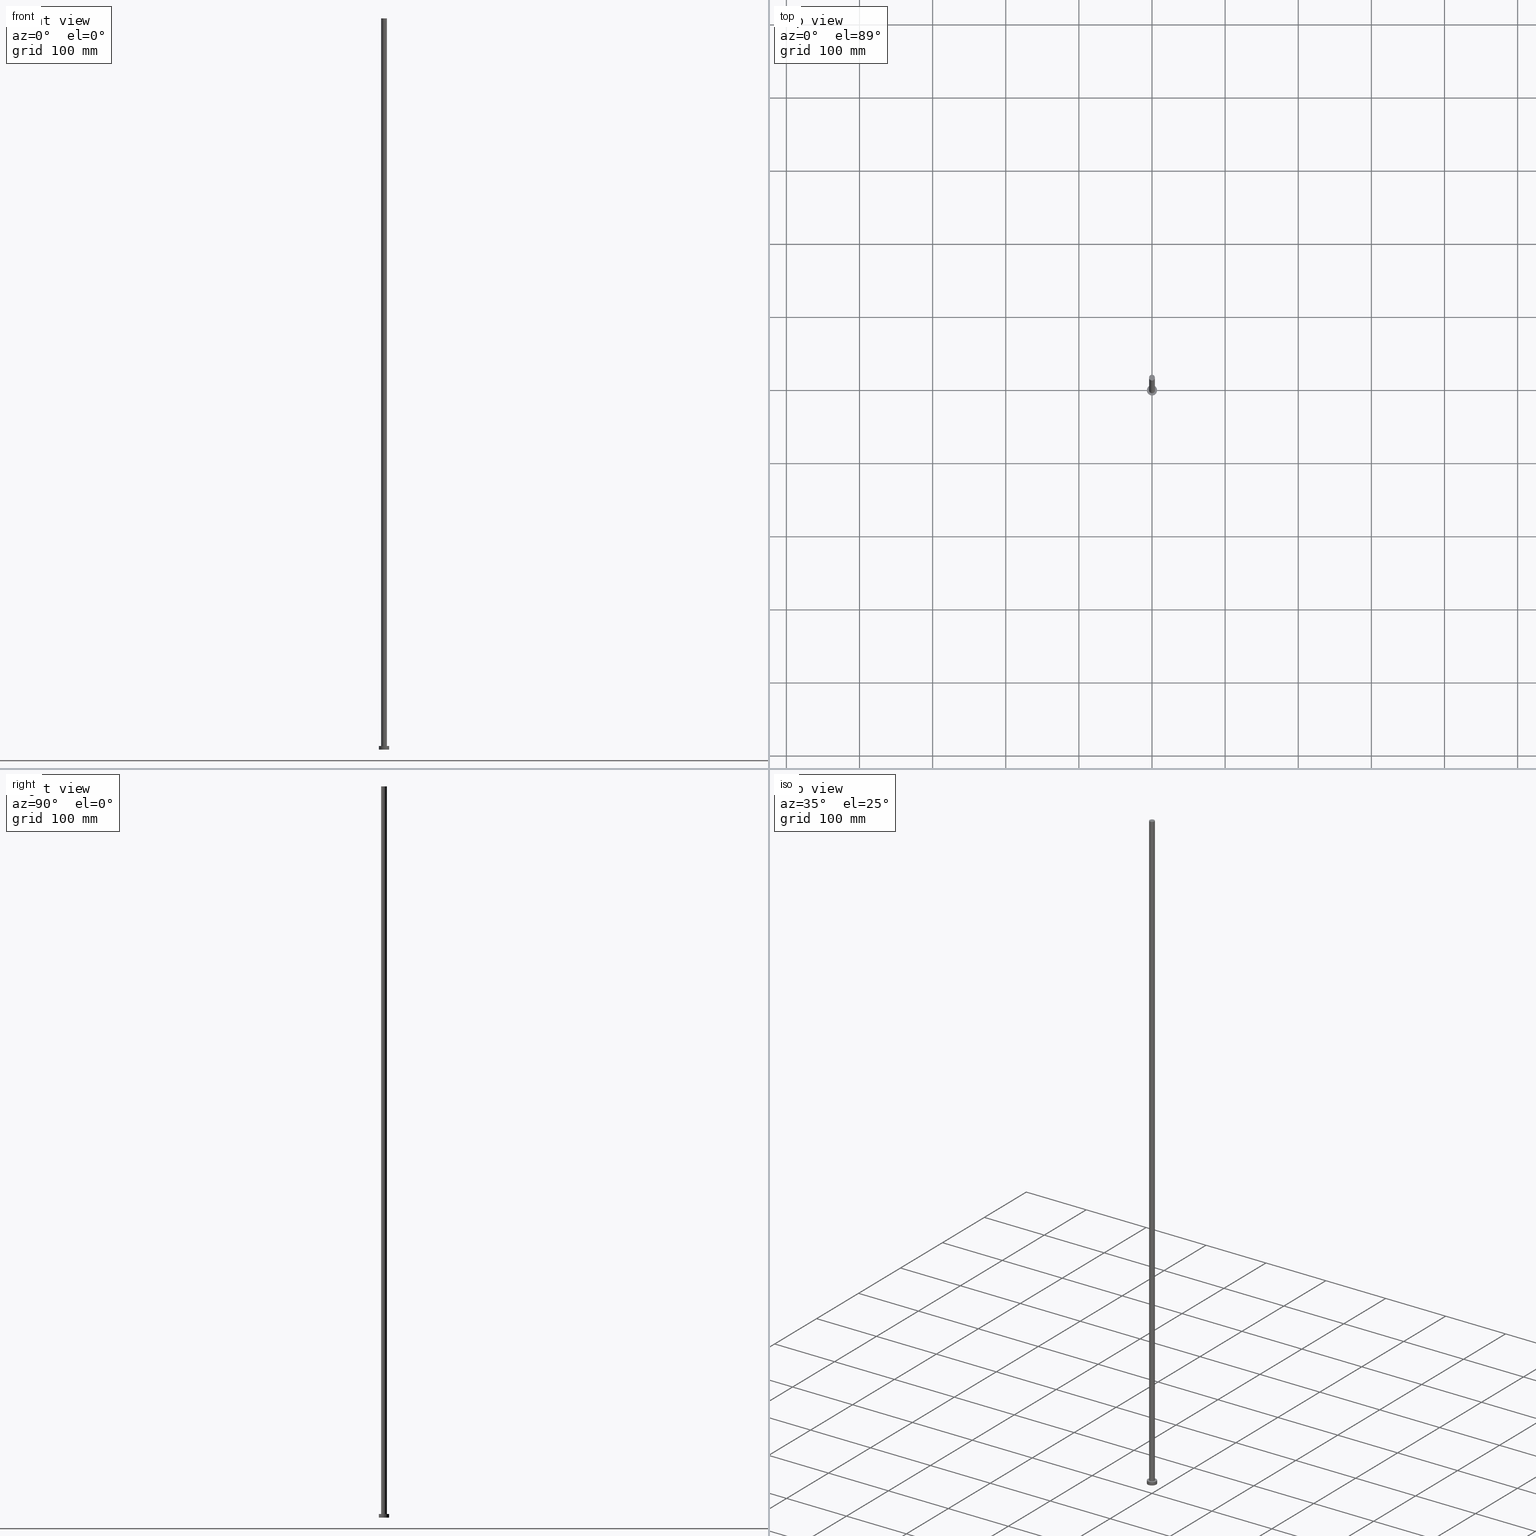
[diagram: canonical four-view strip — front | top / right | iso, engineering-drawing reading convention]
A machine part, canonical four-view strip (front | top / right | iso — engineering-drawing reading convention). The complete STEP part file that produces these views, byte-faithful:
ISO-10303-21;
HEADER;
FILE_DESCRIPTION (( 'STEP AP203' ),
    '1' );
FILE_NAME ('4111.STEP',
    '2023-02-13T10:53:35',
    ( '' ),
    ( '' ),
    'SwSTEP 2.0',
    'SolidWorks 2019',
    '' );
FILE_SCHEMA (( 'CONFIG_CONTROL_DESIGN' ));
ENDSEC;

DATA;
#1 = ORIENTED_EDGE ( 'NONE', *, *, #172, .T. ) ;
#2 = ORIENTED_EDGE ( 'NONE', *, *, #203, .F. ) ;
#3 = CC_DESIGN_PERSON_AND_ORGANIZATION_ASSIGNMENT ( #60, #107, ( #139 ) ) ;
#4 = COORDINATED_UNIVERSAL_TIME_OFFSET ( 1, 0, .AHEAD. ) ;
#5 = CARTESIAN_POINT ( 'NONE',  ( 4.000000000000000000, 4.898587196589411843E-16, 5.000000000000000000 ) ) ;
#6 = CARTESIAN_POINT ( 'NONE',  ( 0.000000000000000000, 0.000000000000000000, 5.000000000000000000 ) ) ;
#7 = CARTESIAN_POINT ( 'NONE',  ( -7.000000000000000000, 0.000000000000000000, 5.000000000000000000 ) ) ;
#8 = AXIS2_PLACEMENT_3D ( 'NONE', #105, #255, #166 ) ;
#9 = EDGE_LOOP ( 'NONE', ( #69, #252 ) ) ;
#10 = ORIENTED_EDGE ( 'NONE', *, *, #119, .F. ) ;
#11 = CARTESIAN_POINT ( 'NONE',  ( 0.000000000000000000, 0.000000000000000000, 0.000000000000000000 ) ) ;
#12 = DIRECTION ( 'NONE',  ( 0.000000000000000000, 0.000000000000000000, 1.000000000000000000 ) ) ;
#13 = ORIENTED_EDGE ( 'NONE', *, *, #203, .T. ) ;
#14 = EDGE_CURVE ( 'NONE', #85, #55, #108, .T. ) ;
#15 = PERSON_AND_ORGANIZATION ( #117, #18 ) ;
#16 = PERSON_AND_ORGANIZATION ( #117, #18 ) ;
#17 = EDGE_LOOP ( 'NONE', ( #2, #99, #159, #142 ) ) ;
#18 = ORGANIZATION ( 'NEUR�EN�', 'NEUR�EN�', '' ) ;
#19 = APPROVAL_ROLE ( '' ) ;
#20 = CC_DESIGN_DATE_AND_TIME_ASSIGNMENT ( #126, #212, ( #190 ) ) ;
#21 = CC_DESIGN_PERSON_AND_ORGANIZATION_ASSIGNMENT ( #84, #56, ( #139 ) ) ;
#22 = CLOSED_SHELL ( 'NONE', ( #114, #65, #30, #239, #207, #237, #109 ) ) ;
#23 = AXIS2_PLACEMENT_3D ( 'NONE', #208, #115, #247 ) ;
#24 = CARTESIAN_POINT ( 'NONE',  ( -4.000000000000000000, 0.000000000000000000, 1000.000000000000000 ) ) ;
#25 = EDGE_CURVE ( 'NONE', #35, #29, #95, .T. ) ;
#26 = APPROVAL_DATE_TIME ( #51, #145 ) ;
#27 = EDGE_CURVE ( 'NONE', #181, #82, #229, .T. ) ;
#28 = VECTOR ( 'NONE', #93, 1000.000000000000000 ) ;
#29 = VERTEX_POINT ( 'NONE', #121 ) ;
#30 = ADVANCED_FACE ( 'NONE', ( #200 ), #162, .T. ) ;
#31 = CARTESIAN_POINT ( 'NONE',  ( 7.000000000000000000, 8.572527594031473190E-16, 0.000000000000000000 ) ) ;
#32 = DATE_AND_TIME ( #232, #42 ) ;
#33 = DIRECTION ( 'NONE',  ( 0.000000000000000000, 0.000000000000000000, 1.000000000000000000 ) ) ;
#34 = CC_DESIGN_DATE_AND_TIME_ASSIGNMENT ( #171, #161, ( #176 ) ) ;
#35 = VERTEX_POINT ( 'NONE', #211 ) ;
#36 = EDGE_LOOP ( 'NONE', ( #160, #101 ) ) ;
#37 = COORDINATED_UNIVERSAL_TIME_OFFSET ( 1, 0, .AHEAD. ) ;
#38 = PERSON_AND_ORGANIZATION_ROLE ( 'classification_officer' ) ;
#39 = PRODUCT_RELATED_PRODUCT_CATEGORY ( 'detail', '', ( #91 ) ) ;
#40 = PRODUCT_DEFINITION_SHAPE ( 'NONE', 'NONE',  #176 ) ;
#41 = APPROVAL_ROLE ( '' ) ;
#42 = LOCAL_TIME ( 11, 53, 35.00000000000000000, #4 ) ;
#43 = CC_DESIGN_PERSON_AND_ORGANIZATION_ASSIGNMENT ( #110, #144, ( #91 ) ) ;
#44 = DIRECTION ( 'NONE',  ( -1.000000000000000000, 0.000000000000000000, 0.000000000000000000 ) ) ;
#45 = CARTESIAN_POINT ( 'NONE',  ( 0.000000000000000000, 0.000000000000000000, 1000.000000000000000 ) ) ;
#46 = CIRCLE ( 'NONE', #80, 7.000000000000000000 ) ;
#47 = EDGE_LOOP ( 'NONE', ( #53, #169 ) ) ;
#48 = DIRECTION ( 'NONE',  ( 1.000000000000000000, 0.000000000000000000, -0.000000000000000000 ) ) ;
#49 = VECTOR ( 'NONE', #131, 1000.000000000000000 ) ;
#50 = ORIENTED_EDGE ( 'NONE', *, *, #27, .T. ) ;
#51 = DATE_AND_TIME ( #102, #196 ) ;
#52 = APPROVAL_DATE_TIME ( #32, #137 ) ;
#53 = ORIENTED_EDGE ( 'NONE', *, *, #14, .F. ) ;
#54 = APPROVAL_STATUS ( 'not_yet_approved' ) ;
#55 = VERTEX_POINT ( 'NONE', #31 ) ;
#56 = PERSON_AND_ORGANIZATION_ROLE ( 'creator' ) ;
#57 = DIRECTION ( 'NONE',  ( 1.000000000000000000, 0.000000000000000000, 0.000000000000000000 ) ) ;
#58 = EDGE_LOOP ( 'NONE', ( #231, #197, #226, #234 ) ) ;
#59 = CARTESIAN_POINT ( 'NONE',  ( 7.000000000000000000, 8.572527594031473190E-16, 5.000000000000000000 ) ) ;
#60 = PERSON_AND_ORGANIZATION ( #117, #18 ) ;
#61 = CARTESIAN_POINT ( 'NONE',  ( 0.000000000000000000, 0.000000000000000000, 5.000000000000000000 ) ) ;
#62 = APPROVAL_STATUS ( 'not_yet_approved' ) ;
#63 = DIRECTION ( 'NONE',  ( 1.000000000000000000, 0.000000000000000000, 0.000000000000000000 ) ) ;
#64 = MECHANICAL_CONTEXT ( 'NONE', #148, 'mechanical' ) ;
#65 = ADVANCED_FACE ( 'NONE', ( #120 ), #199, .T. ) ;
#66 = CC_DESIGN_APPROVAL ( #137, ( #139 ) ) ;
#67 = DIRECTION ( 'NONE',  ( 0.000000000000000000, 0.000000000000000000, 1.000000000000000000 ) ) ;
#68 = FACE_OUTER_BOUND ( 'NONE', #213, .T. ) ;
#69 = ORIENTED_EDGE ( 'NONE', *, *, #27, .F. ) ;
#70 = CARTESIAN_POINT ( 'NONE',  ( 0.000000000000000000, 0.000000000000000000, 5.000000000000000000 ) ) ;
#71 = CYLINDRICAL_SURFACE ( 'NONE', #250, 4.000000000000000000 ) ;
#72 = DIRECTION ( 'NONE',  ( 1.000000000000000000, 0.000000000000000000, -0.000000000000000000 ) ) ;
#73 = COORDINATED_UNIVERSAL_TIME_OFFSET ( 1, 0, .AHEAD. ) ;
#74 = EDGE_CURVE ( 'NONE', #82, #181, #178, .T. ) ;
#75 = DIRECTION ( 'NONE',  ( 1.000000000000000000, 0.000000000000000000, 0.000000000000000000 ) ) ;
#76 = AXIS2_PLACEMENT_3D ( 'NONE', #179, #244, #48 ) ;
#77 = ORIENTED_EDGE ( 'NONE', *, *, #188, .F. ) ;
#78 = EDGE_CURVE ( 'NONE', #55, #85, #46, .T. ) ;
#79 = PERSON_AND_ORGANIZATION_ROLE ( 'creator' ) ;
#80 = AXIS2_PLACEMENT_3D ( 'NONE', #238, #146, #219 ) ;
#81 = AXIS2_PLACEMENT_3D ( 'NONE', #6, #67, #206 ) ;
#82 = VERTEX_POINT ( 'NONE', #5 ) ;
#83 = ADVANCED_BREP_SHAPE_REPRESENTATION ( '4111', ( #103, #135 ), #254 ) ;
#84 = PERSON_AND_ORGANIZATION ( #117, #18 ) ;
#85 = VERTEX_POINT ( 'NONE', #186 ) ;
#86 = SHAPE_DEFINITION_REPRESENTATION ( #40, #83 ) ;
#87 = AXIS2_PLACEMENT_3D ( 'NONE', #227, #33, #185 ) ;
#88 = AXIS2_PLACEMENT_3D ( 'NONE', #90, #113, #44 ) ;
#89 = ORIENTED_EDGE ( 'NONE', *, *, #25, .T. ) ;
#90 = CARTESIAN_POINT ( 'NONE',  ( 0.000000000000000000, 0.000000000000000000, 1000.000000000000000 ) ) ;
#91 = PRODUCT ( '4111', '4111', '', ( #64 ) ) ;
#92 = DIRECTION ( 'NONE',  ( 0.000000000000000000, 0.000000000000000000, 1.000000000000000000 ) ) ;
#93 = DIRECTION ( 'NONE',  ( -0.000000000000000000, -0.000000000000000000, -1.000000000000000000 ) ) ;
#94 = LOCAL_TIME ( 11, 53, 35.00000000000000000, #37 ) ;
#95 = CIRCLE ( 'NONE', #221, 4.000000000000000000 ) ;
#96 = PLANE ( 'NONE',  #106 ) ;
#97 = CARTESIAN_POINT ( 'NONE',  ( 4.000000000000000000, 4.898587196589411843E-16, 1000.000000000000000 ) ) ;
#98 =( LENGTH_UNIT ( ) NAMED_UNIT ( * ) SI_UNIT ( .MILLI., .METRE. ) );
#99 = ORIENTED_EDGE ( 'NONE', *, *, #136, .F. ) ;
#100 = EDGE_CURVE ( 'NONE', #209, #149, #133, .T. ) ;
#101 = ORIENTED_EDGE ( 'NONE', *, *, #100, .T. ) ;
#102 = CALENDAR_DATE ( 2023, 13, 2 ) ;
#103 = MANIFOLD_SOLID_BREP ( 'P�idat vysunut�m3', #22 ) ;
#104 = APPROVAL ( #62, 'NEUR�EN�' ) ;
#105 = CARTESIAN_POINT ( 'NONE',  ( 0.000000000000000000, 0.000000000000000000, 5.000000000000000000 ) ) ;
#106 = AXIS2_PLACEMENT_3D ( 'NONE', #70, #92, #72 ) ;
#107 = PERSON_AND_ORGANIZATION_ROLE ( 'design_supplier' ) ;
#108 = CIRCLE ( 'NONE', #140, 7.000000000000000000 ) ;
#109 = ADVANCED_FACE ( 'NONE', ( #112 ), #195, .T. ) ;
#110 = PERSON_AND_ORGANIZATION ( #117, #18 ) ;
#111 = DIRECTION ( 'NONE',  ( -0.000000000000000000, -0.000000000000000000, -1.000000000000000000 ) ) ;
#112 = FACE_OUTER_BOUND ( 'NONE', #184, .T. ) ;
#113 = DIRECTION ( 'NONE',  ( -0.000000000000000000, -0.000000000000000000, -1.000000000000000000 ) ) ;
#114 = ADVANCED_FACE ( 'NONE', ( #134 ), #71, .T. ) ;
#115 = DIRECTION ( 'NONE',  ( 0.000000000000000000, 0.000000000000000000, 1.000000000000000000 ) ) ;
#116 = VECTOR ( 'NONE', #111, 1000.000000000000000 ) ;
#117 = PERSON ( 'NEUR�EN�', 'NEUR�EN�', 'NEUR�EN�', ('NEUR�EN�'), ('NEUR�EN�'), ('NEUR�EN�') ) ;
#118 = ORIENTED_EDGE ( 'NONE', *, *, #100, .F. ) ;
#119 = EDGE_CURVE ( 'NONE', #29, #82, #246, .T. ) ;
#120 = FACE_OUTER_BOUND ( 'NONE', #138, .T. ) ;
#121 = CARTESIAN_POINT ( 'NONE',  ( 4.000000000000000000, 4.898587196589411843E-16, 1000.000000000000000 ) ) ;
#122 =( NAMED_UNIT ( * ) SI_UNIT ( $, .STERADIAN. ) SOLID_ANGLE_UNIT ( ) );
#123 = ORIENTED_EDGE ( 'NONE', *, *, #78, .T. ) ;
#124 = CC_DESIGN_PERSON_AND_ORGANIZATION_ASSIGNMENT ( #245, #79, ( #176 ) ) ;
#125 = CARTESIAN_POINT ( 'NONE',  ( 0.000000000000000000, 0.000000000000000000, 5.000000000000000000 ) ) ;
#126 = DATE_AND_TIME ( #214, #94 ) ;
#127 = APPROVAL_ROLE ( '' ) ;
#128 = CARTESIAN_POINT ( 'NONE',  ( 0.000000000000000000, 0.000000000000000000, 0.000000000000000000 ) ) ;
#129 = APPROVAL_DATE_TIME ( #217, #104 ) ;
#130 = LOCAL_TIME ( 11, 53, 35.00000000000000000, #163 ) ;
#131 = DIRECTION ( 'NONE',  ( -0.000000000000000000, -0.000000000000000000, -1.000000000000000000 ) ) ;
#132 = FACE_OUTER_BOUND ( 'NONE', #47, .T. ) ;
#133 = CIRCLE ( 'NONE', #235, 7.000000000000000000 ) ;
#134 = FACE_OUTER_BOUND ( 'NONE', #58, .T. ) ;
#135 = AXIS2_PLACEMENT_3D ( 'NONE', #128, #141, #204 ) ;
#136 = EDGE_CURVE ( 'NONE', #149, #209, #220, .T. ) ;
#137 = APPROVAL ( #54, 'NEUR�EN�' ) ;
#138 = EDGE_LOOP ( 'NONE', ( #118, #13, #123, #77 ) ) ;
#139 = PRODUCT_DEFINITION_FORMATION_WITH_SPECIFIED_SOURCE ( 'LIBOVOLN�', '', #91, .NOT_KNOWN. ) ;
#140 = AXIS2_PLACEMENT_3D ( 'NONE', #165, #158, #63 ) ;
#141 = DIRECTION ( 'NONE',  ( 0.000000000000000000, 0.000000000000000000, 1.000000000000000000 ) ) ;
#142 = ORIENTED_EDGE ( 'NONE', *, *, #14, .T. ) ;
#143 = APPLICATION_PROTOCOL_DEFINITION ( 'international standard', 'config_control_design', 1994, #148 ) ;
#144 = PERSON_AND_ORGANIZATION_ROLE ( 'design_owner' ) ;
#145 = APPROVAL ( #218, 'NEUR�EN�' ) ;
#146 = DIRECTION ( 'NONE',  ( 0.000000000000000000, 0.000000000000000000, 1.000000000000000000 ) ) ;
#147 = CC_DESIGN_APPROVAL ( #145, ( #176 ) ) ;
#148 = APPLICATION_CONTEXT ( 'configuration controlled 3d designs of mechanical parts and assemblies' ) ;
#149 = VERTEX_POINT ( 'NONE', #243 ) ;
#150 = AXIS2_PLACEMENT_3D ( 'NONE', #152, #191, #75 ) ;
#151 = LINE ( 'NONE', #225, #49 ) ;
#152 = CARTESIAN_POINT ( 'NONE',  ( 0.000000000000000000, 0.000000000000000000, 5.000000000000000000 ) ) ;
#153 = FACE_OUTER_BOUND ( 'NONE', #36, .T. ) ;
#154 = PLANE ( 'NONE',  #228 ) ;
#155 = COORDINATED_UNIVERSAL_TIME_OFFSET ( 1, 0, .AHEAD. ) ;
#156 = FACE_BOUND ( 'NONE', #9, .T. ) ;
#157 = DIRECTION ( 'NONE',  ( -1.000000000000000000, 0.000000000000000000, 0.000000000000000000 ) ) ;
#158 = DIRECTION ( 'NONE',  ( 0.000000000000000000, 0.000000000000000000, 1.000000000000000000 ) ) ;
#159 = ORIENTED_EDGE ( 'NONE', *, *, #188, .T. ) ;
#160 = ORIENTED_EDGE ( 'NONE', *, *, #136, .T. ) ;
#161 = DATE_TIME_ROLE ( 'creation_date' ) ;
#162 = CYLINDRICAL_SURFACE ( 'NONE', #192, 7.000000000000000000 ) ;
#163 = COORDINATED_UNIVERSAL_TIME_OFFSET ( 1, 0, .AHEAD. ) ;
#164 = DIRECTION ( 'NONE',  ( 1.000000000000000000, 0.000000000000000000, -0.000000000000000000 ) ) ;
#165 = CARTESIAN_POINT ( 'NONE',  ( 0.000000000000000000, 0.000000000000000000, 0.000000000000000000 ) ) ;
#166 = DIRECTION ( 'NONE',  ( -1.000000000000000000, 0.000000000000000000, 0.000000000000000000 ) ) ;
#167 = SECURITY_CLASSIFICATION_LEVEL ( 'unclassified' ) ;
#168 = VECTOR ( 'NONE', #248, 1000.000000000000000 ) ;
#169 = ORIENTED_EDGE ( 'NONE', *, *, #78, .F. ) ;
#170 = CIRCLE ( 'NONE', #23, 4.000000000000000000 ) ;
#171 = DATE_AND_TIME ( #216, #175 ) ;
#172 = EDGE_CURVE ( 'NONE', #35, #181, #224, .T. ) ;
#173 = PERSON_AND_ORGANIZATION ( #117, #18 ) ;
#174 = APPROVAL_PERSON_ORGANIZATION ( #15, #104, #19 ) ;
#175 = LOCAL_TIME ( 11, 53, 35.00000000000000000, #73 ) ;
#176 = PRODUCT_DEFINITION ( 'NEZN�M�', '', #139, #201 ) ;
#177 = DIRECTION ( 'NONE',  ( -0.000000000000000000, -0.000000000000000000, -1.000000000000000000 ) ) ;
#178 = CIRCLE ( 'NONE', #81, 4.000000000000000000 ) ;
#179 = CARTESIAN_POINT ( 'NONE',  ( 0.000000000000000000, 0.000000000000000000, 1000.000000000000000 ) ) ;
#180 = CC_DESIGN_APPROVAL ( #104, ( #190 ) ) ;
#181 = VERTEX_POINT ( 'NONE', #242 ) ;
#182 = DIRECTION ( 'NONE',  ( 0.000000000000000000, 0.000000000000000000, 1.000000000000000000 ) ) ;
#183 = CC_DESIGN_PERSON_AND_ORGANIZATION_ASSIGNMENT ( #16, #38, ( #190 ) ) ;
#184 = EDGE_LOOP ( 'NONE', ( #89, #215 ) ) ;
#185 = DIRECTION ( 'NONE',  ( 1.000000000000000000, 0.000000000000000000, 0.000000000000000000 ) ) ;
#186 = CARTESIAN_POINT ( 'NONE',  ( -7.000000000000000000, 0.000000000000000000, 0.000000000000000000 ) ) ;
#187 = PERSON_AND_ORGANIZATION ( #117, #18 ) ;
#188 = EDGE_CURVE ( 'NONE', #149, #85, #223, .T. ) ;
#189 = APPLICATION_PROTOCOL_DEFINITION ( 'international standard', 'config_control_design', 1994, #236 ) ;
#190 = SECURITY_CLASSIFICATION ( '', '', #167 ) ;
#191 = DIRECTION ( 'NONE',  ( 0.000000000000000000, 0.000000000000000000, 1.000000000000000000 ) ) ;
#192 = AXIS2_PLACEMENT_3D ( 'NONE', #125, #251, #157 ) ;
#193 = DIRECTION ( 'NONE',  ( 0.000000000000000000, 0.000000000000000000, 1.000000000000000000 ) ) ;
#194 = DIRECTION ( 'NONE',  ( -1.000000000000000000, 0.000000000000000000, 0.000000000000000000 ) ) ;
#195 = PLANE ( 'NONE',  #76 ) ;
#196 = LOCAL_TIME ( 11, 53, 35.00000000000000000, #155 ) ;
#197 = ORIENTED_EDGE ( 'NONE', *, *, #119, .T. ) ;
#198 =( NAMED_UNIT ( * ) PLANE_ANGLE_UNIT ( ) SI_UNIT ( $, .RADIAN. ) );
#199 = CYLINDRICAL_SURFACE ( 'NONE', #8, 7.000000000000000000 ) ;
#200 = FACE_OUTER_BOUND ( 'NONE', #17, .T. ) ;
#201 = DESIGN_CONTEXT ( 'detailed design', #236, 'design' ) ;
#202 = CC_DESIGN_SECURITY_CLASSIFICATION ( #190, ( #139 ) ) ;
#203 = EDGE_CURVE ( 'NONE', #209, #55, #151, .T. ) ;
#204 = DIRECTION ( 'NONE',  ( 1.000000000000000000, 0.000000000000000000, 0.000000000000000000 ) ) ;
#205 = EDGE_CURVE ( 'NONE', #29, #35, #170, .T. ) ;
#206 = DIRECTION ( 'NONE',  ( 1.000000000000000000, 0.000000000000000000, 0.000000000000000000 ) ) ;
#207 = ADVANCED_FACE ( 'NONE', ( #132 ), #154, .F. ) ;
#208 = CARTESIAN_POINT ( 'NONE',  ( 0.000000000000000000, 0.000000000000000000, 1000.000000000000000 ) ) ;
#209 = VERTEX_POINT ( 'NONE', #59 ) ;
#210 = APPROVAL_PERSON_ORGANIZATION ( #187, #137, #127 ) ;
#211 = CARTESIAN_POINT ( 'NONE',  ( -4.000000000000000000, 0.000000000000000000, 1000.000000000000000 ) ) ;
#212 = DATE_TIME_ROLE ( 'classification_date' ) ;
#213 = EDGE_LOOP ( 'NONE', ( #10, #253, #1, #50 ) ) ;
#214 = CALENDAR_DATE ( 2023, 13, 2 ) ;
#215 = ORIENTED_EDGE ( 'NONE', *, *, #205, .T. ) ;
#216 = CALENDAR_DATE ( 2023, 13, 2 ) ;
#217 = DATE_AND_TIME ( #240, #130 ) ;
#218 = APPROVAL_STATUS ( 'not_yet_approved' ) ;
#219 = DIRECTION ( 'NONE',  ( 1.000000000000000000, 0.000000000000000000, 0.000000000000000000 ) ) ;
#220 = CIRCLE ( 'NONE', #150, 7.000000000000000000 ) ;
#221 = AXIS2_PLACEMENT_3D ( 'NONE', #233, #182, #57 ) ;
#222 = CYLINDRICAL_SURFACE ( 'NONE', #88, 4.000000000000000000 ) ;
#223 = LINE ( 'NONE', #7, #28 ) ;
#224 = LINE ( 'NONE', #24, #116 ) ;
#225 = CARTESIAN_POINT ( 'NONE',  ( 7.000000000000000000, 8.572527594031473190E-16, 5.000000000000000000 ) ) ;
#226 = ORIENTED_EDGE ( 'NONE', *, *, #74, .T. ) ;
#227 = CARTESIAN_POINT ( 'NONE',  ( 0.000000000000000000, 0.000000000000000000, 5.000000000000000000 ) ) ;
#228 = AXIS2_PLACEMENT_3D ( 'NONE', #11, #193, #164 ) ;
#229 = CIRCLE ( 'NONE', #87, 4.000000000000000000 ) ;
#230 = UNCERTAINTY_MEASURE_WITH_UNIT (LENGTH_MEASURE( 1.000000000000000082E-05 ), #98, 'distance_accuracy_value', 'NONE');
#231 = ORIENTED_EDGE ( 'NONE', *, *, #205, .F. ) ;
#232 = CALENDAR_DATE ( 2023, 13, 2 ) ;
#233 = CARTESIAN_POINT ( 'NONE',  ( 0.000000000000000000, 0.000000000000000000, 1000.000000000000000 ) ) ;
#234 = ORIENTED_EDGE ( 'NONE', *, *, #172, .F. ) ;
#235 = AXIS2_PLACEMENT_3D ( 'NONE', #61, #12, #241 ) ;
#236 = APPLICATION_CONTEXT ( 'configuration controlled 3d designs of mechanical parts and assemblies' ) ;
#237 = ADVANCED_FACE ( 'NONE', ( #68 ), #222, .T. ) ;
#238 = CARTESIAN_POINT ( 'NONE',  ( 0.000000000000000000, 0.000000000000000000, 0.000000000000000000 ) ) ;
#239 = ADVANCED_FACE ( 'NONE', ( #156, #153 ), #96, .T. ) ;
#240 = CALENDAR_DATE ( 2023, 13, 2 ) ;
#241 = DIRECTION ( 'NONE',  ( 1.000000000000000000, 0.000000000000000000, 0.000000000000000000 ) ) ;
#242 = CARTESIAN_POINT ( 'NONE',  ( -4.000000000000000000, 0.000000000000000000, 5.000000000000000000 ) ) ;
#243 = CARTESIAN_POINT ( 'NONE',  ( -7.000000000000000000, 0.000000000000000000, 5.000000000000000000 ) ) ;
#244 = DIRECTION ( 'NONE',  ( 0.000000000000000000, 0.000000000000000000, 1.000000000000000000 ) ) ;
#245 = PERSON_AND_ORGANIZATION ( #117, #18 ) ;
#246 = LINE ( 'NONE', #97, #168 ) ;
#247 = DIRECTION ( 'NONE',  ( 1.000000000000000000, 0.000000000000000000, 0.000000000000000000 ) ) ;
#248 = DIRECTION ( 'NONE',  ( -0.000000000000000000, -0.000000000000000000, -1.000000000000000000 ) ) ;
#249 = APPROVAL_PERSON_ORGANIZATION ( #173, #145, #41 ) ;
#250 = AXIS2_PLACEMENT_3D ( 'NONE', #45, #177, #194 ) ;
#251 = DIRECTION ( 'NONE',  ( -0.000000000000000000, -0.000000000000000000, -1.000000000000000000 ) ) ;
#252 = ORIENTED_EDGE ( 'NONE', *, *, #74, .F. ) ;
#253 = ORIENTED_EDGE ( 'NONE', *, *, #25, .F. ) ;
#254 =( GEOMETRIC_REPRESENTATION_CONTEXT ( 3 ) GLOBAL_UNCERTAINTY_ASSIGNED_CONTEXT ( ( #230 ) ) GLOBAL_UNIT_ASSIGNED_CONTEXT ( ( #98, #198, #122 ) ) REPRESENTATION_CONTEXT ( 'NONE', 'WORKASPACE' ) );
#255 = DIRECTION ( 'NONE',  ( -0.000000000000000000, -0.000000000000000000, -1.000000000000000000 ) ) ;
ENDSEC;
END-ISO-10303-21;
